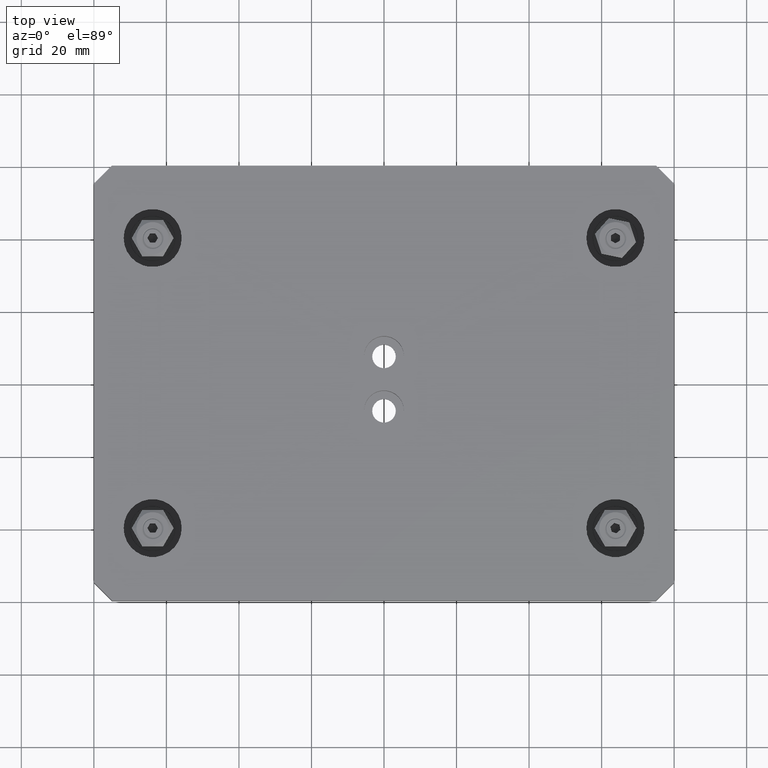
[diagram: clean part render]
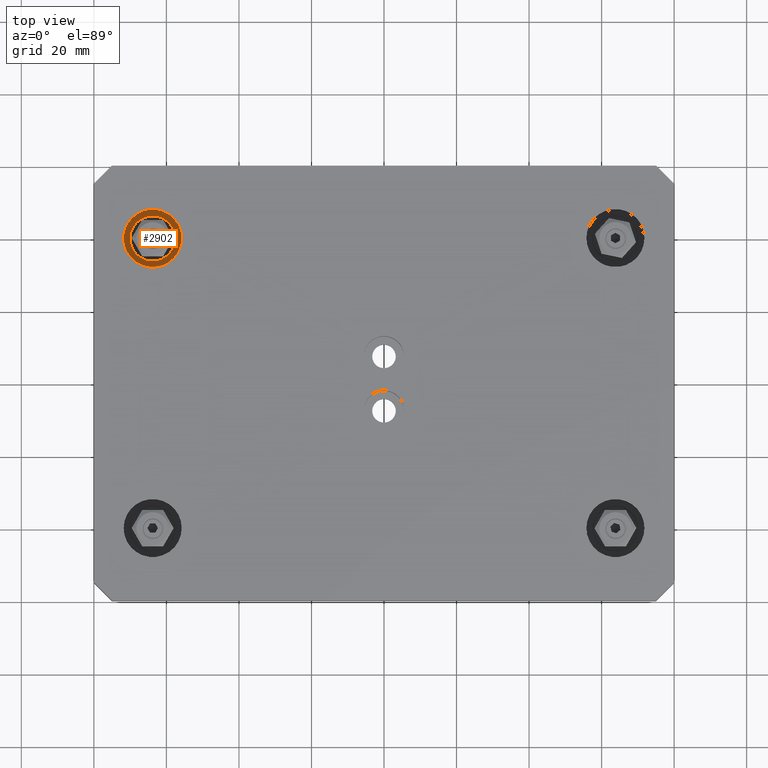
[diagram: same view with one face highlighted and labeled with its STEP entity id]
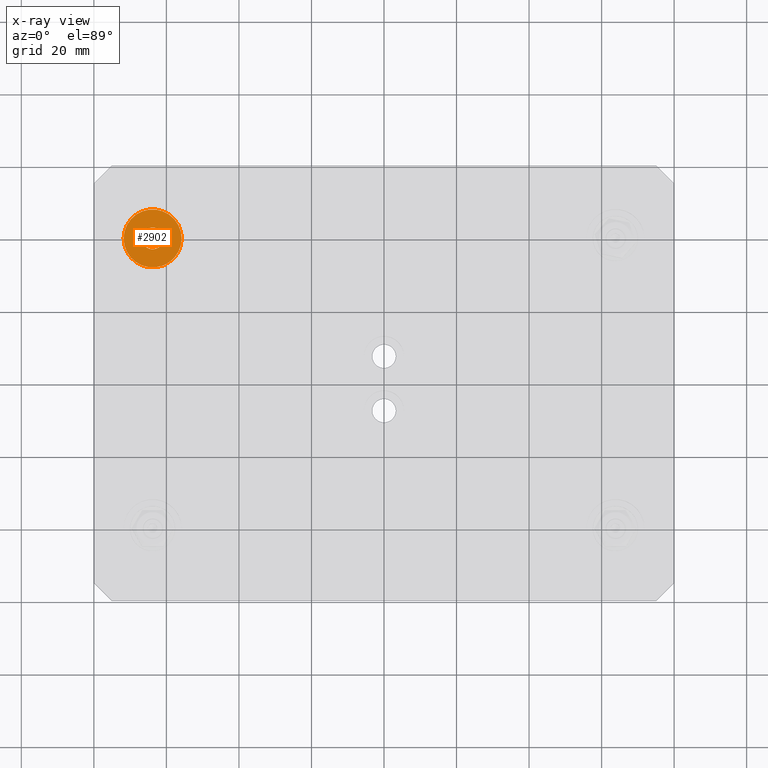
[diagram: x-ray of the same camera — body ghosted, the highlighted face saturated]
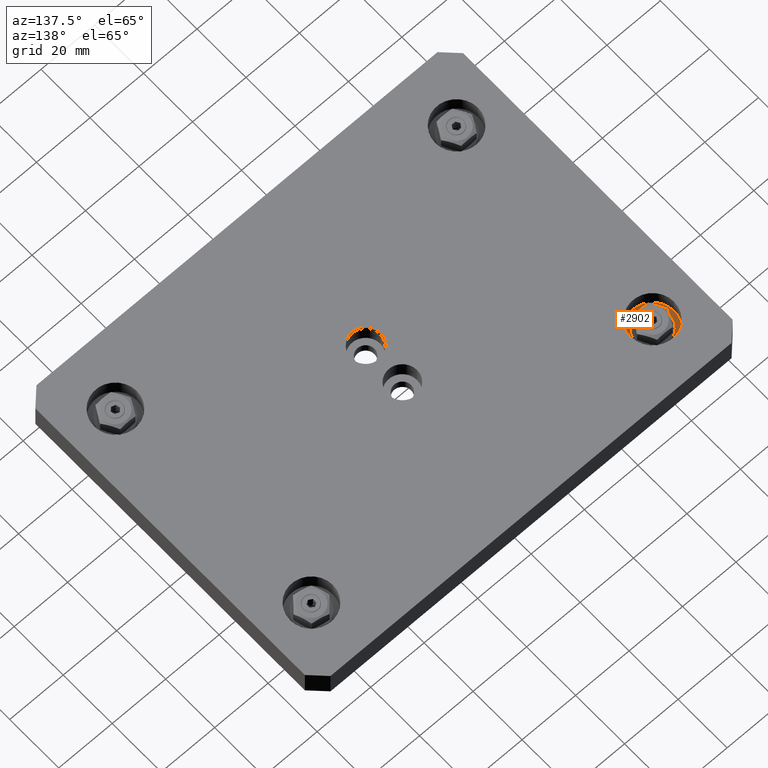
[diagram: same view with one face highlighted and labeled with its STEP entity id]
A machine part, top view. The second image highlights one B-rep face of the part: STEP entity #2902.
The next image is the same camera in x-ray: the body ghosted, the highlighted face saturated — about 0% of this face is hidden behind the body in this view.
A second angle (auxiliary view) of the same face is appended — the face is thin or edge-on in the first view.
In plain terms, the highlighted planar face has unit normal (0, 0, 1).
Its self-contained STEP definition (entity closure, byte-faithful):
#243=FACE_BOUND('',#645,.T.);
#293=CIRCLE('',#3329,8.);
#294=CIRCLE('',#3330,3.);
#448=FACE_OUTER_BOUND('',#644,.T.);
#644=EDGE_LOOP('',(#2041));
#645=EDGE_LOOP('',(#2042));
#1333=VERTEX_POINT('',#4719);
#1334=VERTEX_POINT('',#4721);
#1605=EDGE_CURVE('',#1333,#1333,#293,.T.);
#1606=EDGE_CURVE('',#1334,#1334,#294,.T.);
#2041=ORIENTED_EDGE('',*,*,#1605,.T.);
#2042=ORIENTED_EDGE('',*,*,#1606,.F.);
#2786=PLANE('',#3328);
#2902=ADVANCED_FACE('',(#448,#243),#2786,.T.);
#3328=AXIS2_PLACEMENT_3D('',#4718,#3763,#3764);
#3329=AXIS2_PLACEMENT_3D('',#4720,#3765,#3766);
#3330=AXIS2_PLACEMENT_3D('',#4722,#3767,#3768);
#3763=DIRECTION('center_axis',(0.,0.,1.));
#3764=DIRECTION('ref_axis',(1.,0.,0.));
#3765=DIRECTION('center_axis',(0.,0.,1.));
#3766=DIRECTION('ref_axis',(1.,0.,0.));
#3767=DIRECTION('center_axis',(0.,0.,1.));
#3768=DIRECTION('ref_axis',(1.,0.,0.));
#4718=CARTESIAN_POINT('Origin',(-63.8,40.,4.));
#4719=CARTESIAN_POINT('',(-71.8,40.,4.));
#4720=CARTESIAN_POINT('Origin',(-63.8,40.,4.));
#4721=CARTESIAN_POINT('',(-66.8,40.,3.99999999999999));
#4722=CARTESIAN_POINT('Origin',(-63.8,40.,3.99999999999999));